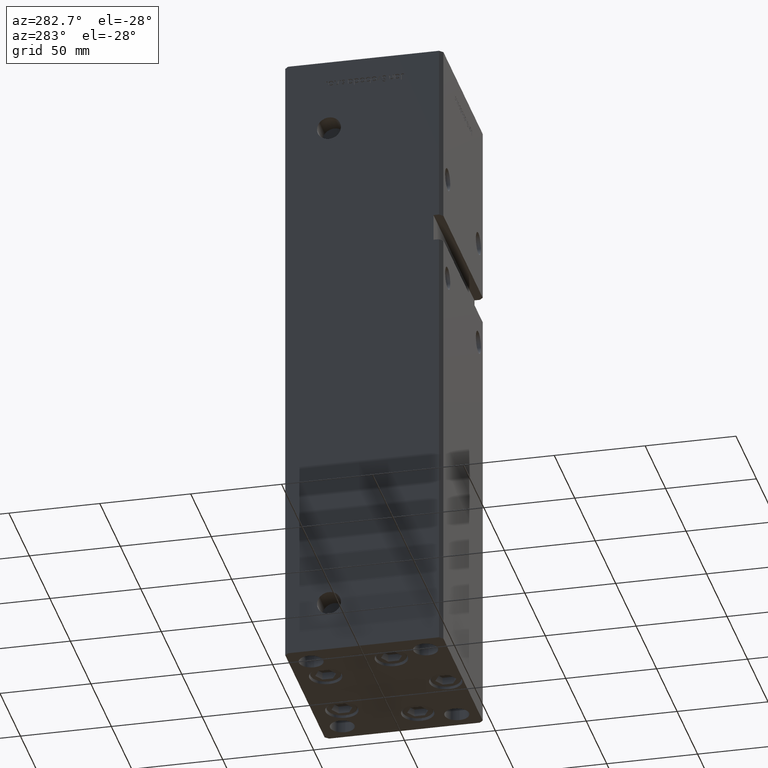
[diagram: clean part render]
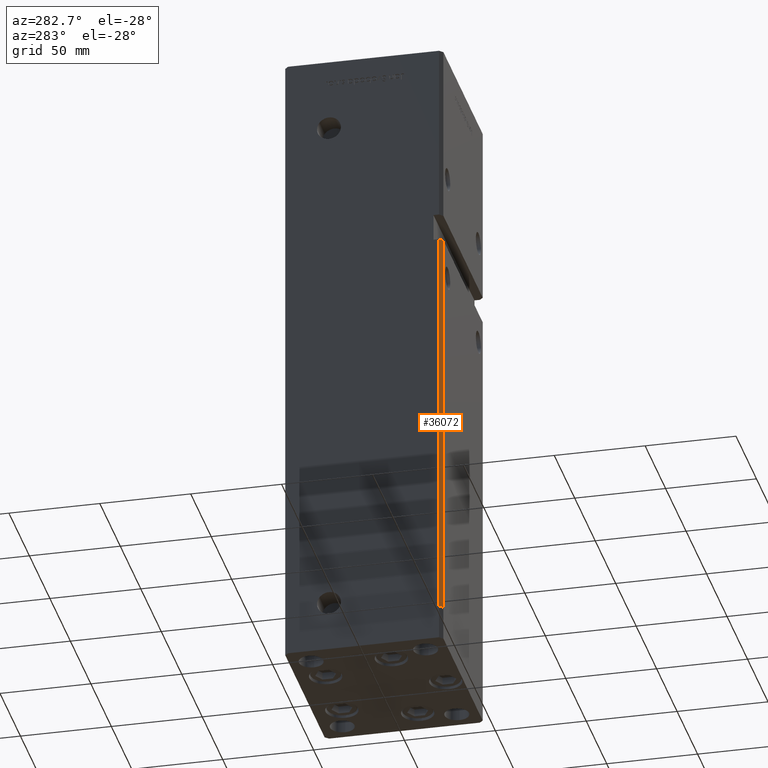
[diagram: same view with one face highlighted and labeled with its STEP entity id]
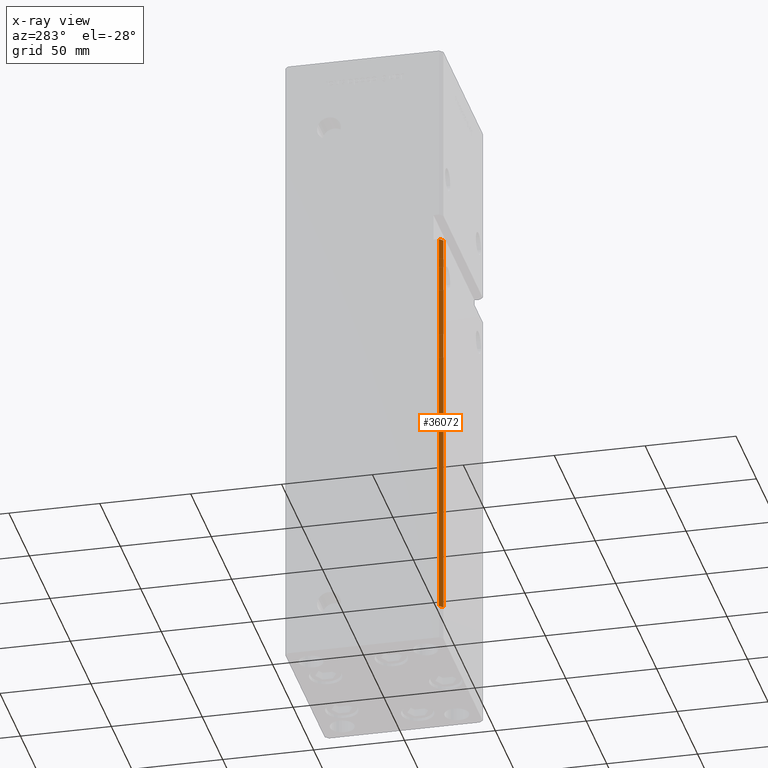
[diagram: x-ray of the same camera — body ghosted, the highlighted face saturated]
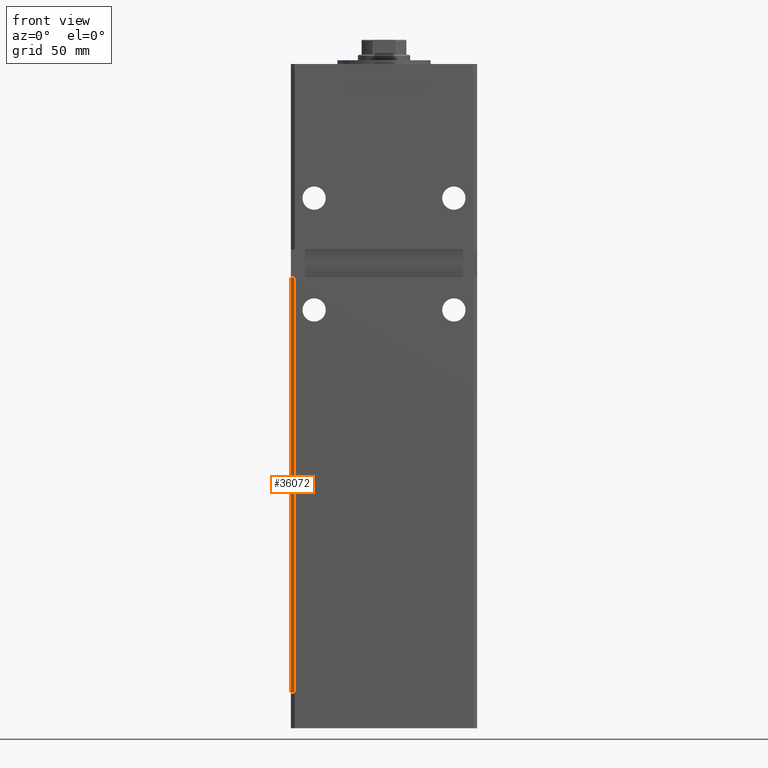
[diagram: same view with one face highlighted and labeled with its STEP entity id]
A machine part, auxiliary view. The second image highlights one B-rep face of the part: STEP entity #36072.
The next image is the same camera in x-ray: the body ghosted, the highlighted face saturated — about 0% of this face is hidden behind the body in this view.
A second angle (front view) of the same face is appended — the face is thin or edge-on in the first view.
In plain terms, the highlighted planar face has unit normal (0.7071, 0.7071, 0).
Its self-contained STEP definition (entity closure, byte-faithful):
#1930 = LINE ( 'NONE', #18324, #49791 ) ;
#2352 = LINE ( 'NONE', #14170, #17401 ) ;
#3030 = DIRECTION ( 'NONE',  ( -0.7071067811865474617, 0.7071067811865474617, 0.000000000000000000 ) ) ;
#4156 = EDGE_CURVE ( 'NONE', #22288, #21670, #51409, .T. ) ;
#6210 = CARTESIAN_POINT ( 'NONE',  ( -49.99999999999998579, -41.49999999999999289, 318.5000000000000000 ) ) ;
#6471 = PLANE ( 'NONE',  #12943 ) ;
#8055 = ORIENTED_EDGE ( 'NONE', *, *, #4156, .T. ) ;
#8212 = LINE ( 'NONE', #48808, #15321 ) ;
#8652 = EDGE_CURVE ( 'NONE', #21594, #27872, #2352, .T. ) ;
#11710 = CARTESIAN_POINT ( 'NONE',  ( -47.99999999999998579, -43.50000000000000000, 223.0000000000000000 ) ) ;
#12943 = AXIS2_PLACEMENT_3D ( 'NONE', #6210, #23394, #27165 ) ;
#14170 = CARTESIAN_POINT ( 'NONE',  ( -49.99999999999998579, -41.49999999999999289, 0.000000000000000000 ) ) ;
#15321 = VECTOR ( 'NONE', #25140, 1000.000000000000000 ) ;
#17013 = ORIENTED_EDGE ( 'NONE', *, *, #29221, .T. ) ;
#17401 = VECTOR ( 'NONE', #19006, 1000.000000000000114 ) ;
#18324 = CARTESIAN_POINT ( 'NONE',  ( -47.99999999999998579, -43.50000000000000000, 318.5000000000000000 ) ) ;
#19006 = DIRECTION ( 'NONE',  ( 0.7071067811865474617, -0.7071067811865474617, 0.000000000000000000 ) ) ;
#20713 = CARTESIAN_POINT ( 'NONE',  ( -47.99999999999998579, -43.50000000000000000, 0.000000000000000000 ) ) ;
#21594 = VERTEX_POINT ( 'NONE', #23467 ) ;
#21670 = VERTEX_POINT ( 'NONE', #25601 ) ;
#21841 = DIRECTION ( 'NONE',  ( -0.000000000000000000, -0.000000000000000000, -1.000000000000000000 ) ) ;
#22288 = VERTEX_POINT ( 'NONE', #11710 ) ;
#23394 = DIRECTION ( 'NONE',  ( 0.7071067811865475727, 0.7071067811865475727, -0.000000000000000000 ) ) ;
#23467 = CARTESIAN_POINT ( 'NONE',  ( -49.99999999999998579, -41.49999999999999289, 0.000000000000000000 ) ) ;
#25140 = DIRECTION ( 'NONE',  ( -0.000000000000000000, -0.000000000000000000, -1.000000000000000000 ) ) ;
#25601 = CARTESIAN_POINT ( 'NONE',  ( -49.99999999999998579, -41.49999999999999289, 223.0000000000000000 ) ) ;
#27165 = DIRECTION ( 'NONE',  ( -0.7071067811865474617, 0.7071067811865474617, 0.000000000000000000 ) ) ;
#27479 = CARTESIAN_POINT ( 'NONE',  ( -49.99999999999998579, -41.49999999999999289, 223.0000000000000000 ) ) ;
#27872 = VERTEX_POINT ( 'NONE', #20713 ) ;
#29221 = EDGE_CURVE ( 'NONE', #21670, #21594, #8212, .T. ) ;
#33630 = EDGE_LOOP ( 'NONE', ( #48079, #8055, #17013, #36179 ) ) ;
#33974 = EDGE_CURVE ( 'NONE', #22288, #27872, #1930, .T. ) ;
#36072 = ADVANCED_FACE ( 'NONE', ( #43012 ), #6471, .F. ) ;
#36179 = ORIENTED_EDGE ( 'NONE', *, *, #8652, .T. ) ;
#43012 = FACE_OUTER_BOUND ( 'NONE', #33630, .T. ) ;
#47087 = VECTOR ( 'NONE', #3030, 1000.000000000000114 ) ;
#48079 = ORIENTED_EDGE ( 'NONE', *, *, #33974, .F. ) ;
#48808 = CARTESIAN_POINT ( 'NONE',  ( -49.99999999999998579, -41.49999999999999289, 318.5000000000000000 ) ) ;
#49791 = VECTOR ( 'NONE', #21841, 1000.000000000000000 ) ;
#51409 = LINE ( 'NONE', #27479, #47087 ) ;